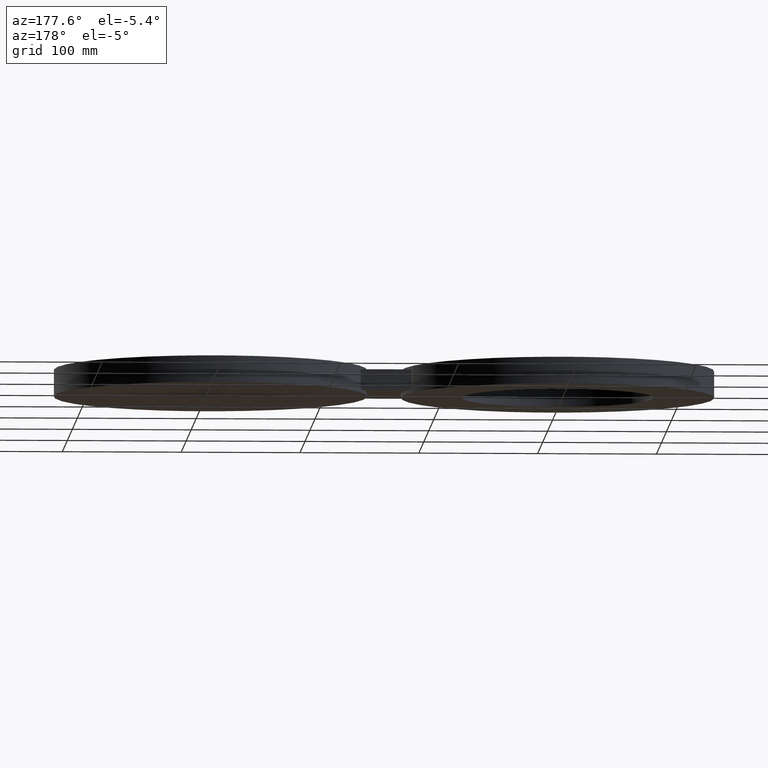
[diagram: clean part render]
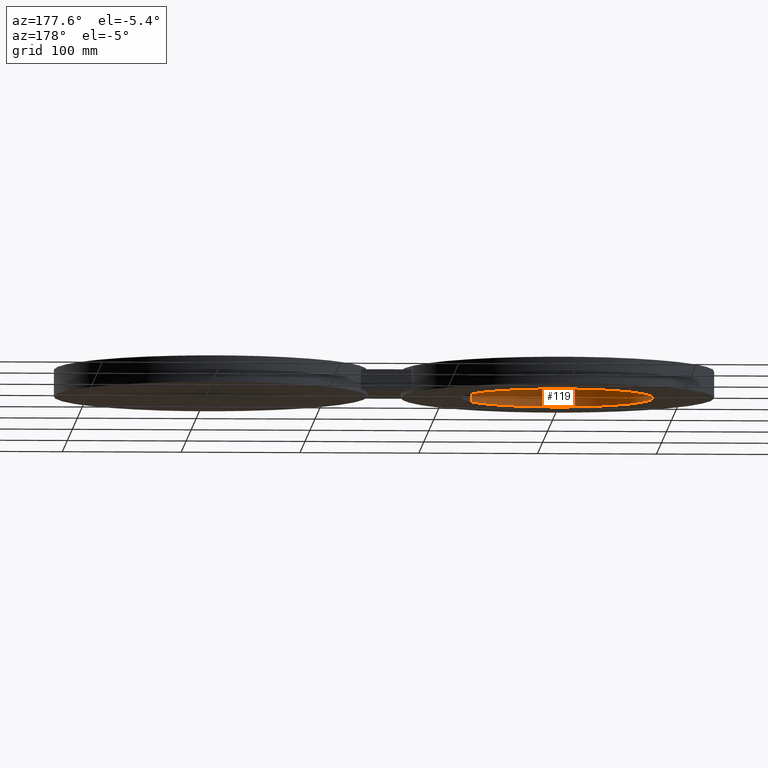
[diagram: same view with one face highlighted and labeled with its STEP entity id]
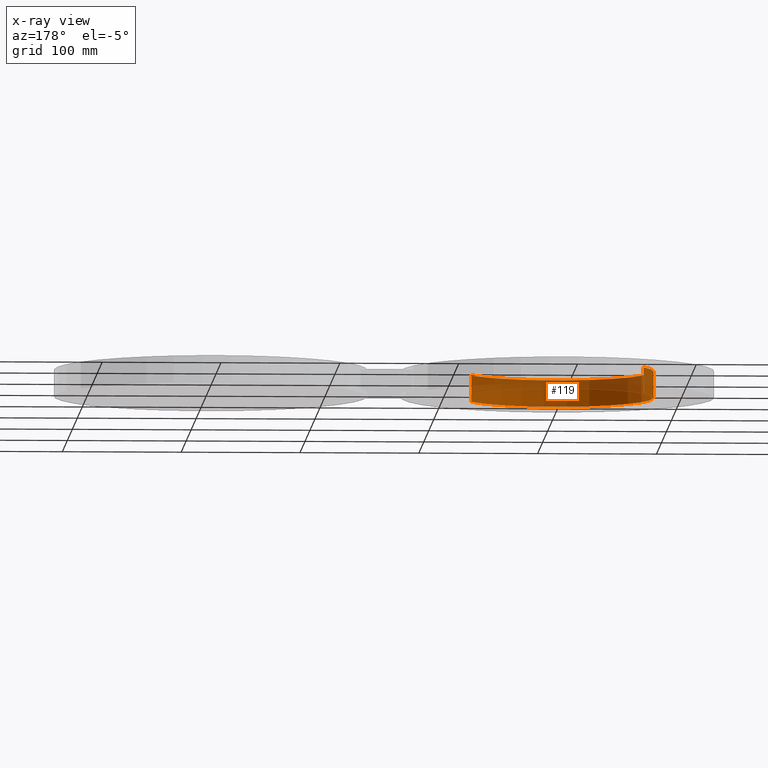
[diagram: x-ray of the same camera — body ghosted, the highlighted face saturated]
A machine part, auxiliary view. The second image highlights one B-rep face of the part: STEP entity #119.
The next image is the same camera in x-ray: the body ghosted, the highlighted face saturated — about 44% of this face is hidden behind the body in this view.
In plain terms, the highlighted cylindrical surface (partial cylindrical patch) has radius 80.772 mm, axis along (0, -0, -1).
Its self-contained STEP definition (entity closure, byte-faithful):
#38=AXIS2_PLACEMENT_3D('Cylinder Axis2P3D',#35,#36,#37) ;
#100=AXIS2_PLACEMENT_3D('Circle Axis2P3D',#98,#99,$) ;
#110=AXIS2_PLACEMENT_3D('Circle Axis2P3D',#108,#109,$) ;
#35=CARTESIAN_POINT('Axis2P3D Location',(8.52336574023E-017,-6.99353086378E-017,0.436062992128)) ;
#40=CARTESIAN_POINT('Line Origine',(-2.79071254682,1.52457321277,0.)) ;
#44=CARTESIAN_POINT('Vertex',(-2.79071254682,1.52457321277,-0.440000000002)) ;
#46=CARTESIAN_POINT('Vertex',(-2.79071254682,1.52457321277,0.440000000002)) ;
#53=CARTESIAN_POINT('Vertex',(2.79071254682,-1.52457321277,-0.440000000002)) ;
#56=CARTESIAN_POINT('Line Origine',(2.79071254682,-1.52457321277,0.)) ;
#60=CARTESIAN_POINT('Vertex',(2.79071254682,-1.52457321277,0.440000000002)) ;
#98=CARTESIAN_POINT('Axis2P3D Location',(0.,8.39223703654E-016,0.440000000002)) ;
#108=CARTESIAN_POINT('Axis2P3D Location',(8.52336574023E-017,-6.99353086378E-017,-0.440000000002)) ;
#36=DIRECTION('Axis2P3D Direction',(0.,-0.,-0.0393700787402)) ;
#37=DIRECTION('Axis2P3D XDirection',(0.0345504945626,-0.0188750212049,0.)) ;
#41=DIRECTION('Vector Direction',(0.,0.,-0.0393700787402)) ;
#57=DIRECTION('Vector Direction',(0.,0.,-0.0393700787402)) ;
#99=DIRECTION('Axis2P3D Direction',(0.,0.,0.0393700787402)) ;
#109=DIRECTION('Axis2P3D Direction',(0.,-0.,-0.0393700787402)) ;
#42=VECTOR('Line Direction',#41,0.0393700787402) ;
#58=VECTOR('Line Direction',#57,0.0393700787402) ;
#114=ORIENTED_EDGE('',*,*,#62,.F.) ;
#115=ORIENTED_EDGE('',*,*,#112,.F.) ;
#116=ORIENTED_EDGE('',*,*,#48,.T.) ;
#117=ORIENTED_EDGE('',*,*,#102,.T.) ;
#119=ADVANCED_FACE('PartBody',(#118),#39,.F.) ;
#101=CIRCLE('generated circle',#100,3.18000000001) ;
#111=CIRCLE('generated circle',#110,3.18000000001) ;
#39=CYLINDRICAL_SURFACE('generated cylinder',#38,3.18000000001) ;
#48=EDGE_CURVE('',#45,#47,#43,.F.) ;
#62=EDGE_CURVE('',#54,#61,#59,.F.) ;
#102=EDGE_CURVE('',#47,#61,#101,.T.) ;
#112=EDGE_CURVE('',#45,#54,#111,.F.) ;
#113=EDGE_LOOP('',(#114,#115,#116,#117)) ;
#118=FACE_OUTER_BOUND('',#113,.T.) ;
#43=LINE('Line',#40,#42) ;
#59=LINE('Line',#56,#58) ;
#45=VERTEX_POINT('',#44) ;
#47=VERTEX_POINT('',#46) ;
#54=VERTEX_POINT('',#53) ;
#61=VERTEX_POINT('',#60) ;